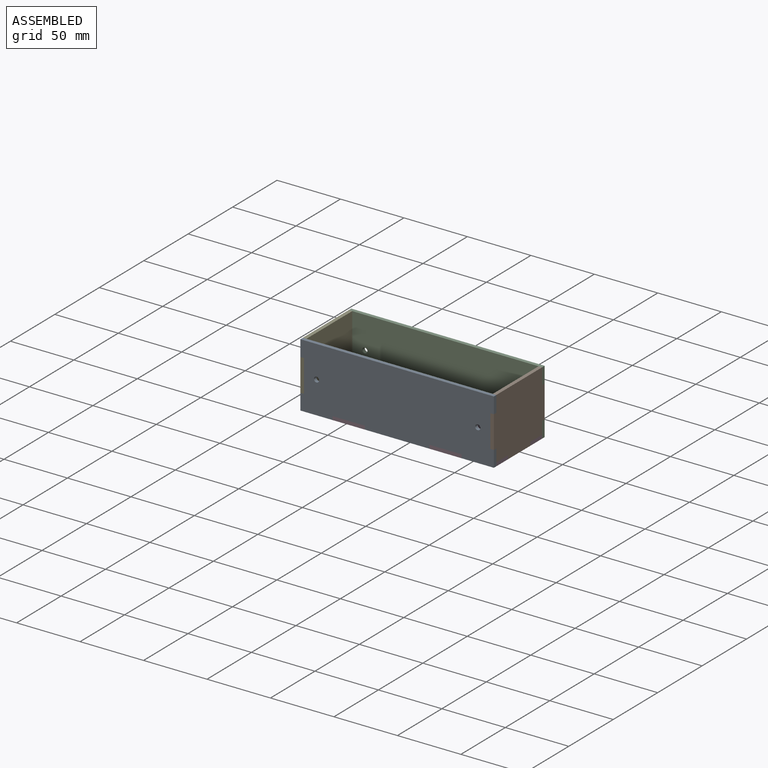
[diagram: assembled view]
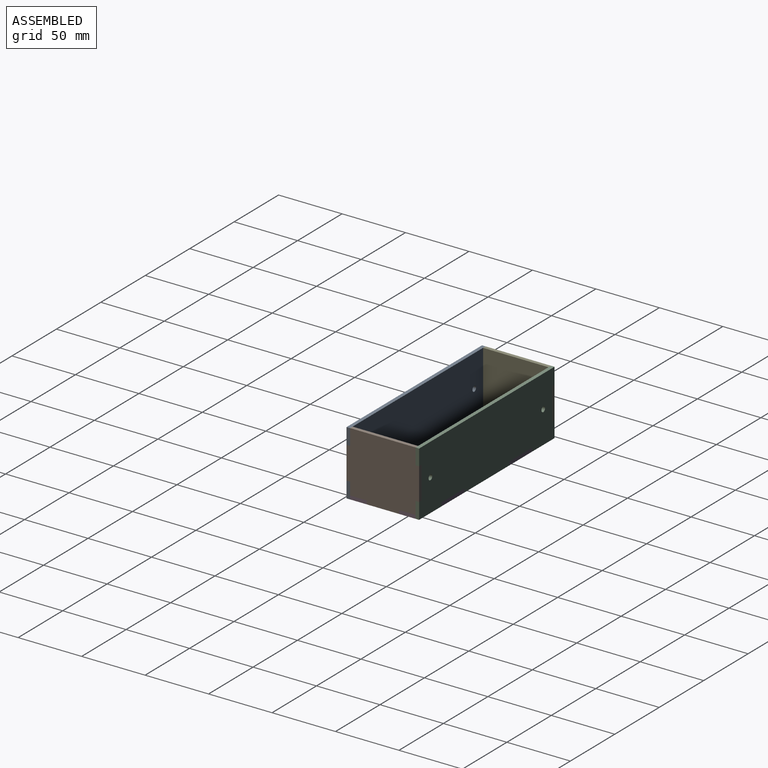
[diagram: assembled view, second angle]
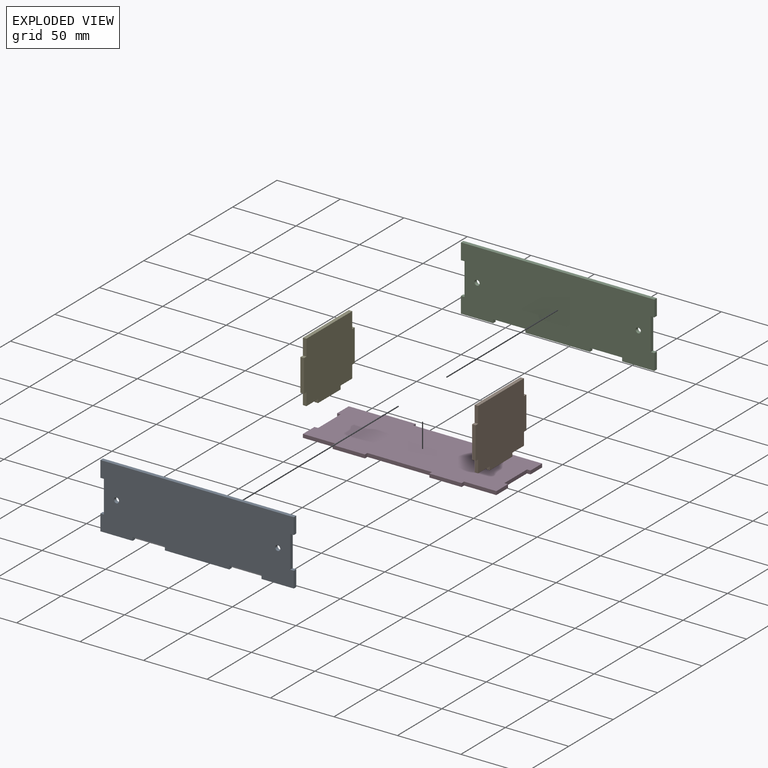
[diagram: exploded view]
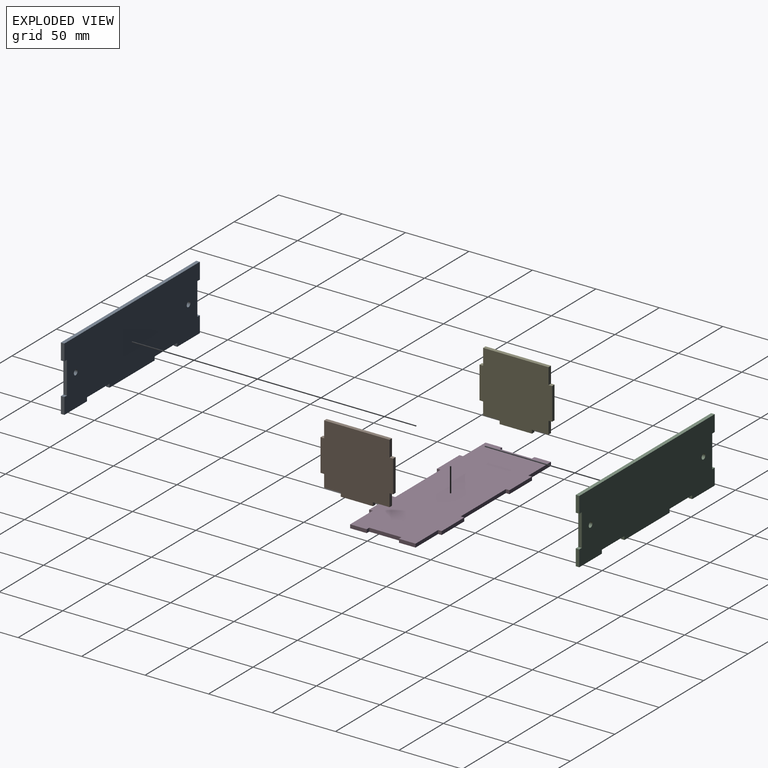
[diagram: exploded view, second angle]
ASSEMBLY  parts=5 mates=12
PART A: 24 faces, bbox 152.4x2.8x50.8 mm
  f0: plane 152.4x50.8mm, normal (0,-1,0), area 7432.1mm2, adj f2,f3,f4,f5,f6,f7,f8,f9
  f1: plane 152.4x50.8mm, normal (0,1,0), area 7432.1mm2, adj f2,f3,f4,f5,f6,f7,f8,f9
  f2: plane 12.7x2.79mm, normal (1,0,0), area 35.5mm2, adj f0,f1,f9,f21
  f3: plane 12.7x2.79mm, normal (-1,0,0), area 35.5mm2, adj f0,f1,f5,f16
  f4: plane 50.8x2.79mm, normal (0,0,-1), area 141.9mm2, adj f0,f1,f11,f15
  f5: plane 25.4x2.79mm, normal (0,0,-1), area 71mm2, adj f0,f1,f3,f10
  f6: plane 12.7x2.79mm, normal (1,0,0), area 35.5mm2, adj f0,f1,f7,f19
  f7: plane 152.4x2.79mm, normal (0,0,1), area 425.8mm2, adj f0,f1,f6,f8
  f8: plane 12.7x2.79mm, normal (-1,0,0), area 35.5mm2, adj f0,f1,f7,f18
  f9: plane 25.4x2.79mm, normal (0,0,-1), area 71mm2, adj f0,f1,f2,f13
  f10: plane 2.79x2.79mm, normal (1,0,0), area 7.8mm2, adj f0,f1,f5,f12
  f11: plane 2.79x2.79mm, normal (-1,0,0), area 7.8mm2, adj f0,f1,f4,f12
  f12: plane 25.4x2.79mm, normal (0,0,-1), area 71mm2, adj f0,f1,f10,f11
  f13: plane 2.79x2.79mm, normal (-1,0,0), area 7.8mm2, adj f0,f1,f9,f14
  f14: plane 25.4x2.79mm, normal (0,0,-1), area 71mm2, adj f0,f1,f13,f15
  f15: plane 2.79x2.79mm, normal (1,0,0), area 7.8mm2, adj f0,f1,f4,f14
  f16: plane 2.79x2.79mm, normal (0,0,1), area 7.8mm2, adj f0,f1,f3,f17
  f17: plane 25.4x2.79mm, normal (-1,0,0), area 71mm2, adj f0,f1,f16,f18
  f18: plane 2.79x2.79mm, normal (0,0,-1), area 7.8mm2, adj f0,f1,f8,f17
  f19: plane 2.79x2.79mm, normal (0,0,-1), area 7.8mm2, adj f0,f1,f6,f20
  f20: plane 25.4x2.79mm, normal (1,0,0), area 71mm2, adj f0,f1,f19,f21
  f21: plane 2.79x2.79mm, normal (0,0,1), area 7.8mm2, adj f0,f1,f2,f20
  f22: cylinder r=2.03mm len=4.06mm, axis (0,-1,0), area 35.7mm2, adj f0,f1
  f23: cylinder r=2.03mm len=4.06mm, axis (0,-1,0), area 35.7mm2, adj f0,f1
PART B: 18 faces, bbox 2.8x57.2x50.8 mm
  f0: plane 25.4x2.79mm, normal (0,0,-1), area 71mm2, adj f1,f2,f14,f16
  f1: plane 57.15x50.8mm, normal (1,0,0), area 2688.2mm2, adj f0,f3,f4,f5,f6,f7,f8,f9
  f2: plane 57.15x50.8mm, normal (-1,0,0), area 2688.2mm2, adj f0,f3,f4,f5,f6,f7,f8,f9
  f3: plane 9.91x2.79mm, normal (0,1,0), area 27.7mm2, adj f1,f2,f12,f17
  f4: plane 9.91x2.79mm, normal (0,-1,0), area 27.7mm2, adj f1,f2,f13,f15
  f5: plane 25.4x2.79mm, normal (0,1,0), area 71mm2, adj f1,f2,f10,f12
  f6: plane 51.56x2.79mm, normal (0,0,1), area 144.1mm2, adj f1,f2,f9,f11
  f7: plane 25.4x2.79mm, normal (0,-1,0), area 71mm2, adj f1,f2,f8,f13
  f8: plane 2.79x2.79mm, normal (0,0,1), area 7.8mm2, adj f1,f2,f7,f9
  f9: plane 12.7x2.79mm, normal (0,-1,0), area 35.5mm2, adj f1,f2,f6,f8
  f10: plane 2.79x2.79mm, normal (0,0,1), area 7.8mm2, adj f1,f2,f5,f11
  f11: plane 12.7x2.79mm, normal (0,1,0), area 35.5mm2, adj f1,f2,f6,f10
  f12: plane 2.79x2.79mm, normal (0,0,-1), area 7.8mm2, adj f1,f2,f3,f5
  f13: plane 2.79x2.79mm, normal (0,0,-1), area 7.8mm2, adj f1,f2,f4,f7
  f14: plane 2.79x2.79mm, normal (0,-1,0), area 7.8mm2, adj f0,f1,f2,f15
  f15: plane 13.08x2.79mm, normal (0,0,-1), area 36.5mm2, adj f1,f2,f4,f14
  f16: plane 2.79x2.79mm, normal (0,1,0), area 7.8mm2, adj f0,f1,f2,f17
  f17: plane 13.08x2.79mm, normal (0,0,-1), area 36.5mm2, adj f1,f2,f3,f16
PART C: same geometry as A
PART D: 30 faces, bbox 152.4x57.2x2.8 mm
  f0: plane 13.08x2.79mm, normal (1,0,0), area 36.5mm2, adj f2,f3,f18,f26
  f1: plane 13.08x2.79mm, normal (-1,0,0), area 36.5mm2, adj f2,f3,f23,f28
  f2: plane 152.4x57.15mm, normal (0,0,1), area 8000mm2, adj f0,f1,f4,f5,f6,f7,f8,f9
  f3: plane 152.4x57.15mm, normal (0,0,-1), area 8000mm2, adj f0,f1,f4,f5,f6,f7,f8,f9
  f4: plane 13.08x2.79mm, normal (1,0,0), area 36.5mm2, adj f2,f3,f16,f24
  f5: plane 25.4x2.79mm, normal (0,1,0), area 71mm2, adj f2,f3,f14,f15
  f6: plane 25.4x2.79mm, normal (0,1,0), area 71mm2, adj f2,f3,f11,f12
  f7: plane 13.08x2.79mm, normal (-1,0,0), area 36.5mm2, adj f2,f3,f10,f27
  f8: plane 25.4x2.79mm, normal (0,-1,0), area 71mm2, adj f2,f3,f21,f22
  f9: plane 25.4x2.79mm, normal (0,-1,0), area 71mm2, adj f2,f3,f17,f19
  f10: plane 25.4x2.79mm, normal (0,1,0), area 71mm2, adj f2,f3,f7,f11
  f11: plane 2.79x2.79mm, normal (-1,0,0), area 7.8mm2, adj f2,f3,f6,f10
  f12: plane 2.79x2.79mm, normal (1,0,0), area 7.8mm2, adj f2,f3,f6,f13
  f13: plane 50.8x2.79mm, normal (0,1,0), area 141.9mm2, adj f2,f3,f12,f14
  f14: plane 2.79x2.79mm, normal (-1,0,0), area 7.8mm2, adj f2,f3,f5,f13
  f15: plane 2.79x2.79mm, normal (1,0,0), area 7.8mm2, adj f2,f3,f5,f16
  f16: plane 25.4x2.79mm, normal (0,1,0), area 71mm2, adj f2,f3,f4,f15
  f17: plane 2.79x2.79mm, normal (1,0,0), area 7.8mm2, adj f2,f3,f9,f18
  f18: plane 25.4x2.79mm, normal (0,-1,0), area 71mm2, adj f0,f2,f3,f17
  f19: plane 2.79x2.79mm, normal (-1,0,0), area 7.8mm2, adj f2,f3,f9,f20
  f20: plane 50.8x2.79mm, normal (0,-1,0), area 141.9mm2, adj f2,f3,f19,f21
  f21: plane 2.79x2.79mm, normal (1,0,0), area 7.8mm2, adj f2,f3,f8,f20
  f22: plane 2.79x2.79mm, normal (-1,0,0), area 7.8mm2, adj f2,f3,f8,f23
  f23: plane 25.4x2.79mm, normal (0,-1,0), area 71mm2, adj f1,f2,f3,f22
  f24: plane 2.79x2.79mm, normal (0,-1,0), area 7.8mm2, adj f2,f3,f4,f25
  f25: plane 25.4x2.79mm, normal (1,0,0), area 71mm2, adj f2,f3,f24,f26
  f26: plane 2.79x2.79mm, normal (0,1,0), area 7.8mm2, adj f0,f2,f3,f25
  f27: plane 2.79x2.79mm, normal (0,-1,0), area 7.8mm2, adj f2,f3,f7,f29
  f28: plane 2.79x2.79mm, normal (0,1,0), area 7.8mm2, adj f1,f2,f3,f29
  f29: plane 25.4x2.79mm, normal (-1,0,0), area 71mm2, adj f2,f3,f27,f28
PART E: same geometry as B
PLACE A t=(168.67,-17.11,-31.93)mm
PLACE B t=(242.07,8.67,-31.93)mm
PLACE C t=(168.67,37.24,-31.93)mm
PLACE D t=(168.67,8.67,-57.33)mm
PLACE E t=(92.47,8.67,-31.93)mm
MATE planar E.f2 <-> C.f3  axis (-1,0,0) through (92.47,8.67,-31.28)mm
MATE planar D.f3 <-> C.f4  axis (0,0,-1) through (168.67,8.67,-57.33)mm
MATE planar B.f1 <-> C.f2  axis (1,0,0) through (244.87,8.67,-31.28)mm
MATE planar A.f0 <-> D.f9  axis (0,-1,0) through (168.67,-19.91,-31.47)mm
MATE planar D.f3 <-> A.f4  axis (0,0,-1) through (168.67,8.67,-57.33)mm
MATE planar A.f0 <-> B.f7  axis (0,-1,0) through (168.67,-19.91,-31.47)mm
MATE planar B.f1 <-> D.f4  axis (1,0,0) through (244.87,8.67,-31.28)mm
MATE planar D.f3 <-> B.f0  axis (0,0,-1) through (168.67,8.67,-57.33)mm
MATE planar C.f1 <-> D.f6  axis (0,1,0) through (168.67,37.24,-31.47)mm
MATE planar E.f7 <-> A.f0  axis (0,-1,0) through (93.86,-19.91,-31.93)mm
MATE planar E.f0 <-> D.f3  axis (0,0,-1) through (93.86,8.67,-57.33)mm
MATE planar D.f0 <-> A.f2  axis (1,0,0) through (244.87,-10.57,-55.93)mm
